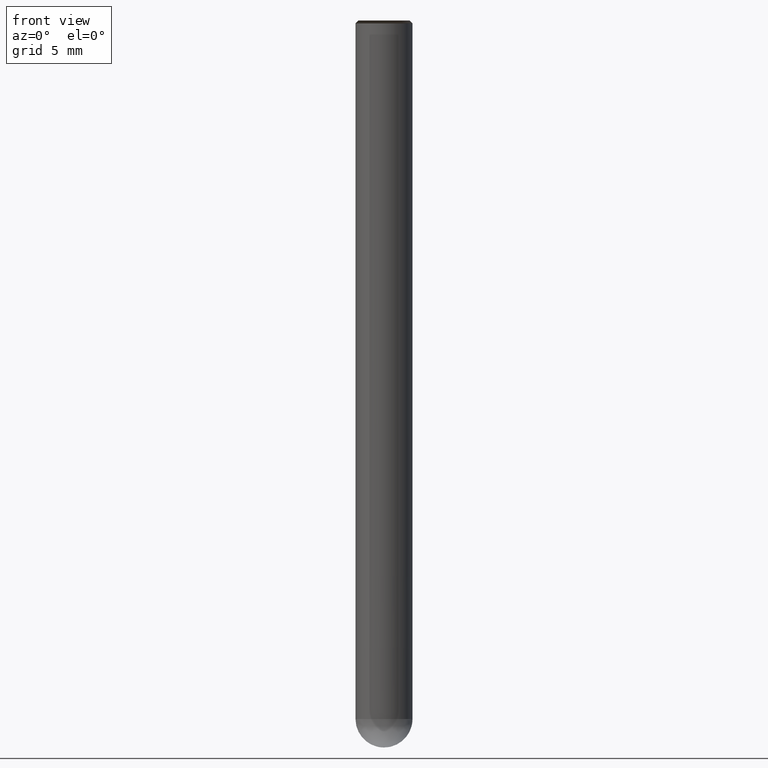
[diagram: clean part render]
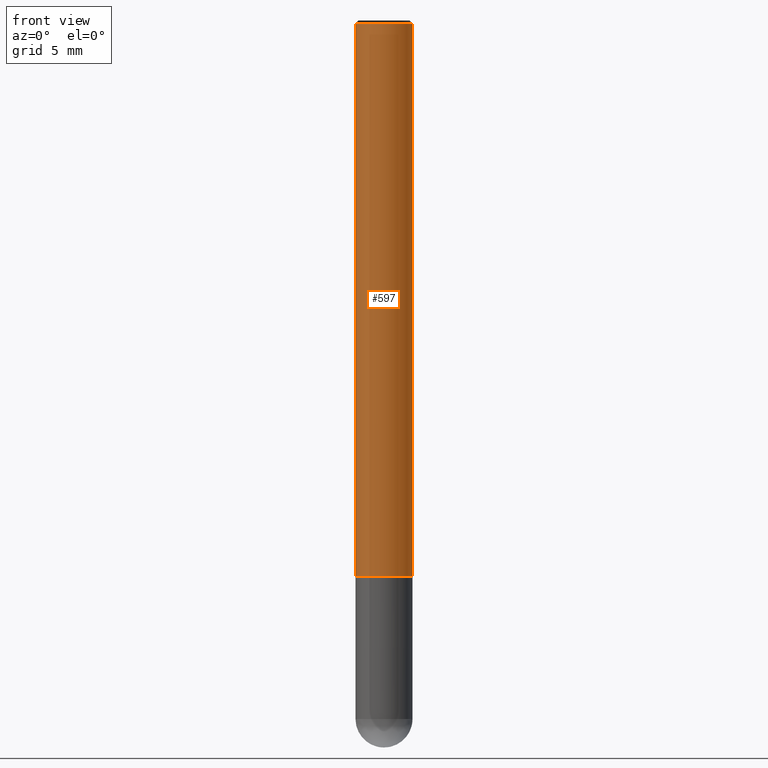
[diagram: same view with one face highlighted and labeled with its STEP entity id]
A machine part, front view. The second image highlights one B-rep face of the part: STEP entity #597.
In plain terms, the highlighted face is a freeform B-spline surface patch.
Its self-contained STEP definition (entity closure, byte-faithful):
#312=CARTESIAN_POINT('',(2.0,0.0,0.0));
#316=CARTESIAN_POINT('',(-2.0,0.0,0.0));
#317=CARTESIAN_POINT('',(2.0,0.0,38.8));
#321=CARTESIAN_POINT('',(-2.0,0.0,38.8));
#328=CARTESIAN_POINT('',(-2.0,-2.0,0.0));
#329=CARTESIAN_POINT('',(0.0,-2.0,0.0));
#330=CARTESIAN_POINT('',(2.0,-2.0,0.0));
#331=CARTESIAN_POINT('',(-2.0,-2.0,38.8));
#332=CARTESIAN_POINT('',(0.0,-2.0,38.8));
#333=CARTESIAN_POINT('',(2.0,-2.0,38.8));
#578=(
BOUNDED_SURFACE()
B_SPLINE_SURFACE(1,2,(
(#316,#328,#329,#330,#312),
(#321,#331,#332,#333,#317)
), .UNSPECIFIED.,.F.,.F.,.F.)
B_SPLINE_SURFACE_WITH_KNOTS((2,2),(3,2,3),(
0.0,1.0),(
0.0,0.5,1.0), .UNSPECIFIED.)
GEOMETRIC_REPRESENTATION_ITEM()
RATIONAL_B_SPLINE_SURFACE(((1.0,0.707106781187,1.0,0.707106781187,1.0),
(1.0,0.707106781187,1.0,0.707106781187,1.0)
))
REPRESENTATION_ITEM('')
SURFACE()
);
#579=(
BOUNDED_CURVE()
B_SPLINE_CURVE(2,(#312,#330,#329,#328,#316),.UNSPECIFIED.,.F.,.F.)
B_SPLINE_CURVE_WITH_KNOTS((3,2,3),
(0.0,0.5,1.0),.UNSPECIFIED.)
CURVE()
GEOMETRIC_REPRESENTATION_ITEM()
RATIONAL_B_SPLINE_CURVE((1.0,0.707106781187,1.0,0.707106781187,1.0))
REPRESENTATION_ITEM('')
);
#580=(
BOUNDED_CURVE()
B_SPLINE_CURVE(1,(#316,#321),.UNSPECIFIED.,.F.,.F.)
B_SPLINE_CURVE_WITH_KNOTS((2,2),
(0.0,1.0),.UNSPECIFIED.)
CURVE()
GEOMETRIC_REPRESENTATION_ITEM()
RATIONAL_B_SPLINE_CURVE((1.0,1.0))
REPRESENTATION_ITEM('')
);
#581=(
BOUNDED_CURVE()
B_SPLINE_CURVE(2,(#321,#331,#332,#333,#317),.UNSPECIFIED.,.F.,.F.)
B_SPLINE_CURVE_WITH_KNOTS((3,2,3),
(0.0,0.5,1.0),.UNSPECIFIED.)
CURVE()
GEOMETRIC_REPRESENTATION_ITEM()
RATIONAL_B_SPLINE_CURVE((1.0,0.707106781187,1.0,0.707106781187,1.0))
REPRESENTATION_ITEM('')
);
#582=(
BOUNDED_CURVE()
B_SPLINE_CURVE(1,(#317,#312),.UNSPECIFIED.,.F.,.F.)
B_SPLINE_CURVE_WITH_KNOTS((2,2),
(0.0,1.0),.UNSPECIFIED.)
CURVE()
GEOMETRIC_REPRESENTATION_ITEM()
RATIONAL_B_SPLINE_CURVE((1.0,1.0))
REPRESENTATION_ITEM('')
);
#583=VERTEX_POINT('',#312);
#584=VERTEX_POINT('',#316);
#585=VERTEX_POINT('',#317);
#586=VERTEX_POINT('',#321);
#587=EDGE_CURVE('',#583,#584,#579,.T.);
#588=EDGE_CURVE('',#584,#586,#580,.T.);
#589=EDGE_CURVE('',#586,#585,#581,.T.);
#590=EDGE_CURVE('',#585,#583,#582,.T.);
#591=ORIENTED_EDGE('',*,*,#587,.T.);
#592=ORIENTED_EDGE('',*,*,#588,.T.);
#593=ORIENTED_EDGE('',*,*,#589,.T.);
#594=ORIENTED_EDGE('',*,*,#590,.T.);
#595=EDGE_LOOP('',(#591,#592,#593,#594));
#596=FACE_OUTER_BOUND('',#595,.T.);
#597=ADVANCED_FACE('',(#596),#578,.T.);